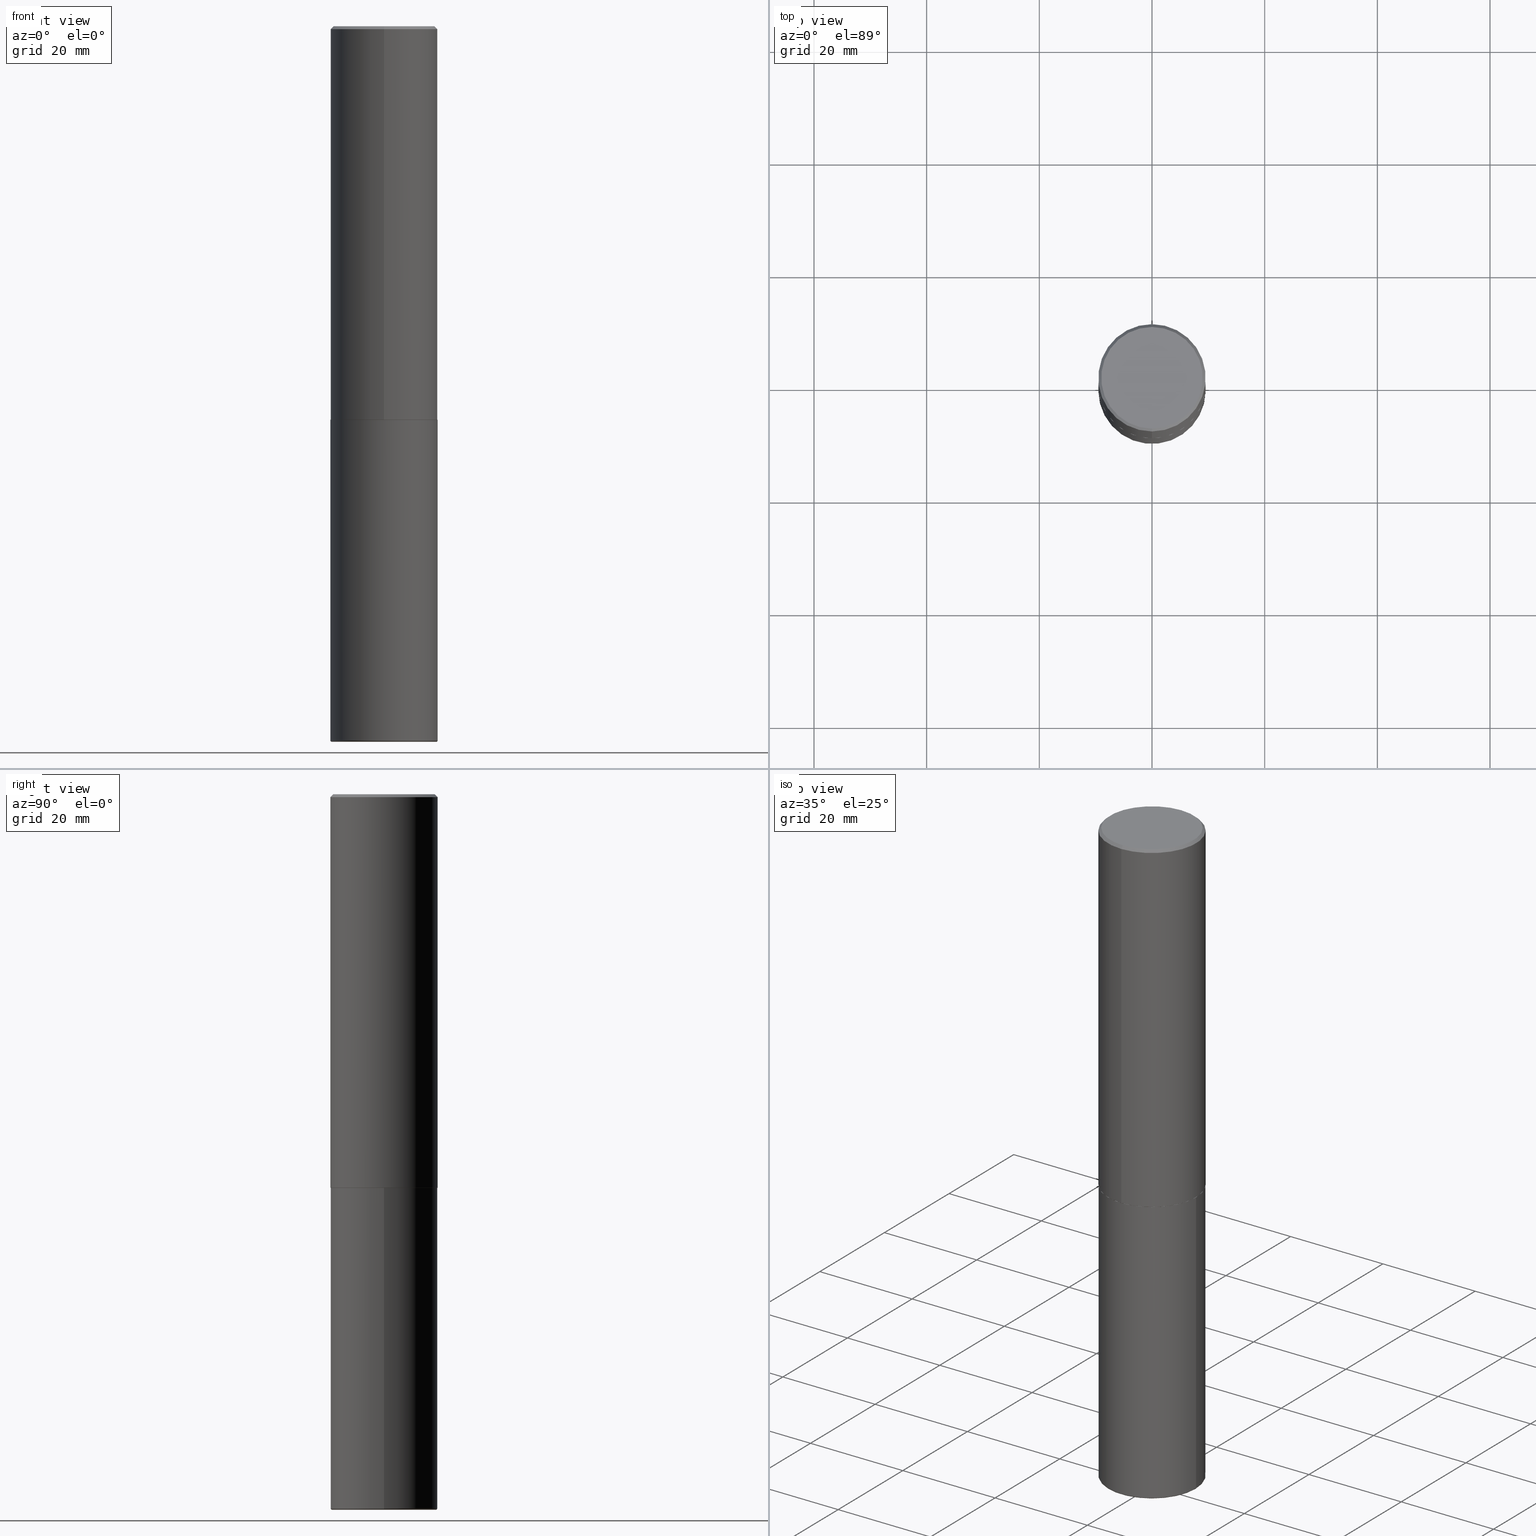
[diagram: canonical four-view strip — front | top / right | iso, engineering-drawing reading convention]
A machine part, canonical four-view strip (front | top / right | iso — engineering-drawing reading convention). The complete STEP part file that produces these views, byte-faithful:
ISO-10303-21;
HEADER;
FILE_DESCRIPTION (( 'STEP AP203' ),
    '1' );
FILE_NAME ('37636.STEP',
    '2024-03-02T06:28:12',
    ( '' ),
    ( '' ),
    'SwSTEP 2.0',
    'SolidWorks 2023',
    '' );
FILE_SCHEMA (( 'CONFIG_CONTROL_DESIGN' ));
ENDSEC;

DATA;
#1 = AXIS2_PLACEMENT_3D ( 'NONE', #70, #113, #350 ) ;
#2 = EDGE_LOOP ( 'NONE', ( #325, #19 ) ) ;
#3 = DIRECTION ( 'NONE',  ( -2.445468806185136597E-29, 3.491481338843145583E-15, 1.000000000000000000 ) ) ;
#4 = DIRECTION ( 'NONE',  ( 1.000000000000000000, -6.982962677686261189E-15, 0.000000000000000000 ) ) ;
#5 = CONICAL_SURFACE ( 'NONE', #381, 0.3739999999999999991, 0.7853981633977213939 ) ;
#6 = CARTESIAN_POINT ( 'NONE',  ( 2.618611004132350411E-15, 0.3749999999999999445, -0.02000000000000139513 ) ) ;
#7 = DIRECTION ( 'NONE',  ( -6.982962677686266711E-15, -1.000000000000000000, 2.921762560068730595E-15 ) ) ;
#8 = ORIENTED_EDGE ( 'NONE', *, *, #354, .F. ) ;
#9 = DIRECTION ( 'NONE',  ( -2.445468806185136597E-29, 3.491481338843145583E-15, 1.000000000000000000 ) ) ;
#10 = ADVANCED_FACE ( 'NONE', ( #359 ), #197, .F. ) ;
#11 = DIRECTION ( 'NONE',  ( -6.982962677686265922E-15, -1.000000000000000000, 3.494488891895536035E-15 ) ) ;
#12 = PERSON_AND_ORGANIZATION ( #415, #66 ) ;
#13 = VERTEX_POINT ( 'NONE', #93 ) ;
#14 = DIRECTION ( 'NONE',  ( -6.982962677686266711E-15, -1.000000000000000000, 3.491481338843145583E-15 ) ) ;
#15 = AXIS2_PLACEMENT_3D ( 'NONE', #147, #62, #11 ) ;
#16 = ORIENTED_EDGE ( 'NONE', *, *, #390, .F. ) ;
#17 = CARTESIAN_POINT ( 'NONE',  ( 0.3750000000000000555, -2.618611004132350016E-15, 1.828566290923476203E-29 ) ) ;
#18 = DIRECTION ( 'NONE',  ( -2.445468806185136597E-29, 3.491481338843145583E-15, 1.000000000000000000 ) ) ;
#19 = ORIENTED_EDGE ( 'NONE', *, *, #271, .F. ) ;
#20 = VECTOR ( 'NONE', #232, 39.37007874015748143 ) ;
#21 = CYLINDRICAL_SURFACE ( 'NONE', #369, 0.3750000000000002220 ) ;
#22 = EDGE_LOOP ( 'NONE', ( #413, #221, #68, #112 ) ) ;
#23 = APPLICATION_PROTOCOL_DEFINITION ( 'international standard', 'config_control_design', 1994, #108 ) ;
#24 = CIRCLE ( 'NONE', #114, 0.3750000000000000555 ) ;
#25 = DIRECTION ( 'NONE',  ( 1.000000000000000000, -6.982962677686266711E-15, 0.000000000000000000 ) ) ;
#26 = VERTEX_POINT ( 'NONE', #145 ) ;
#27 = DIRECTION ( 'NONE',  ( -4.851104656540954809E-15, -0.7071067811865486830, -0.7071067811865463515 ) ) ;
#28 = EDGE_LOOP ( 'NONE', ( #16, #118, #372, #236 ) ) ;
#29 = CARTESIAN_POINT ( 'NONE',  ( 0.3750000000000003886, -2.004110288495964667E-14, -4.990000000000000213 ) ) ;
#30 = ADVANCED_FACE ( 'NONE', ( #207 ), #343, .T. ) ;
#31 = AXIS2_PLACEMENT_3D ( 'NONE', #162, #41, #320 ) ;
#32 = SECURITY_CLASSIFICATION ( '', '', #110 ) ;
#33 = CARTESIAN_POINT ( 'NONE',  ( 6.726611077289389265E-29, -9.599322688432580971E-15, -2.750000000000000000 ) ) ;
#34 = FACE_OUTER_BOUND ( 'NONE', #28, .T. ) ;
#35 = CALENDAR_DATE ( 2024, 2, 3 ) ;
#36 = EDGE_CURVE ( 'NONE', #26, #192, #95, .T. ) ;
#37 = CLOSED_SHELL ( 'NONE', ( #409, #30, #276, #198, #83, #178, #55, #10 ) ) ;
#38 = AXIS2_PLACEMENT_3D ( 'NONE', #205, #177, #175 ) ;
#39 = FACE_OUTER_BOUND ( 'NONE', #306, .T. ) ;
#40 =( LENGTH_UNIT ( ) NAMED_UNIT ( * ) SI_UNIT ( $, .METRE. ) );
#41 = DIRECTION ( 'NONE',  ( 7.105427357601001859E-15, 1.000000000000000000, -3.491481338843145583E-15 ) ) ;
#42 = FACE_OUTER_BOUND ( 'NONE', #203, .T. ) ;
#43 = ORIENTED_EDGE ( 'NONE', *, *, #354, .T. ) ;
#44 = AXIS2_PLACEMENT_3D ( 'NONE', #373, #317, #402 ) ;
#45 = EDGE_CURVE ( 'NONE', #201, #364, #286, .T. ) ;
#46 = DIRECTION ( 'NONE',  ( 1.000000000000000000, -6.982962677686266711E-15, 0.000000000000000000 ) ) ;
#47 = UNCERTAINTY_MEASURE_WITH_UNIT (LENGTH_MEASURE( 1.000000000000000082E-05 ), #379, 'distance_accuracy_value', 'NONE');
#48 = APPROVAL_STATUS ( 'not_yet_approved' ) ;
#49 = DIRECTION ( 'NONE',  ( -2.445468806185136597E-29, 3.491481338843145583E-15, 1.000000000000000000 ) ) ;
#50 = ORIENTED_EDGE ( 'NONE', *, *, #390, .T. ) ;
#51 = APPROVAL_ROLE ( '' ) ;
#52 = AXIS2_PLACEMENT_3D ( 'NONE', #59, #311, #139 ) ;
#53 = VERTEX_POINT ( 'NONE', #214 ) ;
#54 = MANIFOLD_SOLID_BREP ( 'Body-Move/Copy2[1]', #211 ) ;
#55 = ADVANCED_FACE ( 'NONE', ( #42 ), #331, .F. ) ;
#56 = LINE ( 'NONE', #181, #58 ) ;
#57 = AXIS2_PLACEMENT_3D ( 'NONE', #85, #289, #158 ) ;
#58 = VECTOR ( 'NONE', #396, 39.37007874015748143 ) ;
#59 = CARTESIAN_POINT ( 'NONE',  ( 4.892080783483214581E-31, -6.981325591587361238E-17, -0.02000000000000008715 ) ) ;
#60 = ORIENTED_EDGE ( 'NONE', *, *, #351, .F. ) ;
#61 = DIRECTION ( 'NONE',  ( 5.024295867789434219E-15, 0.7071067811867430830, 0.7071067811863519514 ) ) ;
#62 = DIRECTION ( 'NONE',  ( -2.446040391741596606E-29, 3.490662795793665557E-15, 1.000000000000000000 ) ) ;
#63 = EDGE_CURVE ( 'NONE', #279, #356, #160, .T. ) ;
#64 = DIRECTION ( 'NONE',  ( 2.438088387897960049E-29, -3.491481338843145188E-15, -1.000000000000000000 ) ) ;
#65 = AXIS2_PLACEMENT_3D ( 'NONE', #265, #368, #67 ) ;
#66 = ORGANIZATION ( 'UNSPECIFIED', 'UNSPECIFIED', '' ) ;
#67 = DIRECTION ( 'NONE',  ( 1.000000000000000000, -6.982962677686265922E-15, 4.876176775795935793E-29 ) ) ;
#68 = ORIENTED_EDGE ( 'NONE', *, *, #89, .T. ) ;
#69 = PERSON_AND_ORGANIZATION_ROLE ( 'creator' ) ;
#70 = CARTESIAN_POINT ( 'NONE',  ( -1.141397163745304909E-45, 1.628849886601155835E-31, 4.666305460853910467E-17 ) ) ;
#71 = ORIENTED_EDGE ( 'NONE', *, *, #99, .F. ) ;
#72 = CIRCLE ( 'NONE', #15, 0.3750000000000000555 ) ;
#73 = CC_DESIGN_SECURITY_CLASSIFICATION ( #32, ( #157 ) ) ;
#74 = PLANE ( 'NONE',  #212 ) ;
#75 = ORIENTED_EDGE ( 'NONE', *, *, #244, .F. ) ;
#76 = CARTESIAN_POINT ( 'NONE',  ( -2.504081769186608216E-15, -0.3549999999999999822, 1.285848347115290366E-15 ) ) ;
#77 = PERSON_AND_ORGANIZATION_ROLE ( 'classification_officer' ) ;
#78 = APPROVAL_DATE_TIME ( #250, #130 ) ;
#79 = DIRECTION ( 'NONE',  ( -6.982962677686266711E-15, -1.000000000000000000, 3.490662795793665951E-15 ) ) ;
#80 = PRODUCT_DEFINITION_SHAPE ( 'NONE', 'NONE',  #173 ) ;
#81 = VECTOR ( 'NONE', #27, 39.37007874015748143 ) ;
#82 = ORIENTED_EDGE ( 'NONE', *, *, #154, .T. ) ;
#83 = ADVANCED_FACE ( 'NONE', ( #291 ), #21, .T. ) ;
#84 = MECHANICAL_CONTEXT ( 'NONE', #108, 'mechanical' ) ;
#85 = CARTESIAN_POINT ( 'NONE',  ( 6.726611077289389265E-29, -9.599322688432580971E-15, -2.750000000000000000 ) ) ;
#86 = ORIENTED_EDGE ( 'NONE', *, *, #319, .F. ) ;
#87 = CARTESIAN_POINT ( 'NONE',  ( 0.000000000000000000, 0.000000000000000000, 0.000000000000000000 ) ) ;
#88 = ORIENTED_EDGE ( 'NONE', *, *, #292, .T. ) ;
#89 = EDGE_CURVE ( 'NONE', #26, #279, #348, .T. ) ;
#90 = CIRCLE ( 'NONE', #156, 0.3739999999999999991 ) ;
#91 = PERSON_AND_ORGANIZATION ( #415, #66 ) ;
#92 =( NAMED_UNIT ( * ) PLANE_ANGLE_UNIT ( ) SI_UNIT ( $, .RADIAN. ) );
#93 = CARTESIAN_POINT ( 'NONE',  ( -2.611628041454596160E-15, -0.3740000000000096581, -2.749999999999998668 ) ) ;
#94 = DIRECTION ( 'NONE',  ( -6.982962677686265922E-15, -1.000000000000000000, 3.494488891895536035E-15 ) ) ;
#95 = CIRCLE ( 'NONE', #391, 0.3650000000000000466 ) ;
#96 = DIRECTION ( 'NONE',  ( -6.982962677686266711E-15, -1.000000000000000000, 2.921762560068730595E-15 ) ) ;
#97 = CARTESIAN_POINT ( 'NONE',  ( 1.222734403092568523E-28, -1.745740669421573304E-14, -5.000000000000000888 ) ) ;
#98 = FACE_OUTER_BOUND ( 'NONE', #215, .T. ) ;
#99 = EDGE_CURVE ( 'NONE', #364, #356, #358, .T. ) ;
#100 = CIRCLE ( 'NONE', #1, 0.3549999999999999822 ) ;
#101 = ORIENTED_EDGE ( 'NONE', *, *, #387, .T. ) ;
#102 = DIRECTION ( 'NONE',  ( 4.937700262164538576E-15, 0.7071067811865437980, -0.7071067811865512365 ) ) ;
#103 = COORDINATED_UNIVERSAL_TIME_OFFSET ( 5, 0, .BEHIND. ) ;
#104 = CARTESIAN_POINT ( 'NONE',  ( 0.000000000000000000, 0.000000000000000000, 0.000000000000000000 ) ) ;
#105 = EDGE_LOOP ( 'NONE', ( #316, #332, #60, #302 ) ) ;
#106 = DIRECTION ( 'NONE',  ( -1.000000000000000000, 6.982962677686265922E-15, -4.876176775795935793E-29 ) ) ;
#107 = DIRECTION ( 'NONE',  ( -2.446040391741596606E-29, 3.490662795793665557E-15, 1.000000000000000000 ) ) ;
#108 = APPLICATION_CONTEXT ( 'configuration controlled 3d designs of mechanical parts and assemblies' ) ;
#109 = ORIENTED_EDGE ( 'NONE', *, *, #319, .T. ) ;
#110 = SECURITY_CLASSIFICATION_LEVEL ( 'unclassified' ) ;
#111 = CARTESIAN_POINT ( 'NONE',  ( -0.3750000000000000555, 2.664535259100376091E-15, -1.844600658845589598E-29 ) ) ;
#112 = ORIENTED_EDGE ( 'NONE', *, *, #357, .F. ) ;
#113 = DIRECTION ( 'NONE',  ( -2.446040391741596606E-29, 3.490662795793665557E-15, 1.000000000000000000 ) ) ;
#114 = AXIS2_PLACEMENT_3D ( 'NONE', #341, #303, #94 ) ;
#115 = APPROVAL_ROLE ( '' ) ;
#116 = DIRECTION ( 'NONE',  ( 1.000000000000000000, -6.982962677686265922E-15, 4.876176775795935793E-29 ) ) ;
#117 = ADVANCED_FACE ( 'NONE', ( #190 ), #195, .T. ) ;
#118 = ORIENTED_EDGE ( 'NONE', *, *, #321, .T. ) ;
#119 = SHAPE_DEFINITION_REPRESENTATION ( #80, #127 ) ;
#120 = CARTESIAN_POINT ( 'NONE',  ( 0.3650000000000000466, -1.997127325818278338E-14, -4.990000000000000213 ) ) ;
#121 = EDGE_LOOP ( 'NONE', ( #401, #377 ) ) ;
#122 = DIRECTION ( 'NONE',  ( -6.982962677686266711E-15, -1.000000000000000000, 2.921762560068730595E-15 ) ) ;
#123 = VERTEX_POINT ( 'NONE', #414 ) ;
#124 = CONICAL_SURFACE ( 'NONE', #362, 0.3750000000000000555, 0.7853981633974465026 ) ;
#125 = ADVANCED_FACE ( 'NONE', ( #383 ), #258, .T. ) ;
#126 = COORDINATED_UNIVERSAL_TIME_OFFSET ( 5, 0, .BEHIND. ) ;
#127 = ADVANCED_BREP_SHAPE_REPRESENTATION ( '37636', ( #54, #352, #323 ), #315 ) ;
#128 = CARTESIAN_POINT ( 'NONE',  ( 6.725039217009124520E-29, -9.601573681818649859E-15, -2.750000000000000000 ) ) ;
#129 = PERSON_AND_ORGANIZATION ( #415, #66 ) ;
#130 = APPROVAL ( #385, 'UNSPECIFIED' ) ;
#131 = DIRECTION ( 'NONE',  ( -2.446040391741596606E-29, 3.490662795793665557E-15, 1.000000000000000000 ) ) ;
#132 = CIRCLE ( 'NONE', #31, 0.01000000000000057614 ) ;
#133 = APPLICATION_PROTOCOL_DEFINITION ( 'international standard', 'config_control_design', 1994, #210 ) ;
#134 = DIRECTION ( 'NONE',  ( 1.000000000000000000, 0.000000000000000000, 0.000000000000000000 ) ) ;
#135 = FACE_OUTER_BOUND ( 'NONE', #226, .T. ) ;
#136 = CC_DESIGN_DATE_AND_TIME_ASSIGNMENT ( #382, #416, ( #173 ) ) ;
#137 = CARTESIAN_POINT ( 'NONE',  ( -2.572686749164323547E-15, -0.3750000000000001110, -0.01999999999999877570 ) ) ;
#138 = CARTESIAN_POINT ( 'NONE',  ( -2.618611004132351594E-15, -0.3750000000000002220, 1.308998548422625521E-15 ) ) ;
#139 = DIRECTION ( 'NONE',  ( 6.982962677686265922E-15, 1.000000000000000000, -3.494488891895536035E-15 ) ) ;
#140 = EDGE_CURVE ( 'NONE', #192, #201, #132, .T. ) ;
#141 = VECTOR ( 'NONE', #380, 39.37007874015748143 ) ;
#142 = CARTESIAN_POINT ( 'NONE',  ( -2.572686749164323547E-15, -0.3750000000000001110, -0.01999999999999877570 ) ) ;
#143 = VERTEX_POINT ( 'NONE', #155 ) ;
#144 = LINE ( 'NONE', #137, #81 ) ;
#145 = CARTESIAN_POINT ( 'NONE',  ( 0.3650000000000000466, -2.000618807157122291E-14, -5.000000000000000888 ) ) ;
#146 = ORIENTED_EDGE ( 'NONE', *, *, #417, .T. ) ;
#147 = CARTESIAN_POINT ( 'NONE',  ( 4.892080783483214581E-31, -6.981325591587361238E-17, -0.02000000000000008715 ) ) ;
#148 = APPROVAL_STATUS ( 'not_yet_approved' ) ;
#149 = AXIS2_PLACEMENT_3D ( 'NONE', #275, #305, #4 ) ;
#150 = APPROVAL_PERSON_ORGANIZATION ( #355, #151, #51 ) ;
#151 = APPROVAL ( #48, 'UNSPECIFIED' ) ;
#152 = ORIENTED_EDGE ( 'NONE', *, *, #344, .T. ) ;
#153 = DIRECTION ( 'NONE',  ( -6.982962677686265922E-15, -1.000000000000000000, 2.913971193241877611E-15 ) ) ;
#154 = EDGE_CURVE ( 'NONE', #143, #294, #405, .T. ) ;
#155 = CARTESIAN_POINT ( 'NONE',  ( -2.618611004132284935E-15, -0.3750000000000099920, -2.748999999999999222 ) ) ;
#156 = AXIS2_PLACEMENT_3D ( 'NONE', #33, #339, #96 ) ;
#157 = PRODUCT_DEFINITION_FORMATION_WITH_SPECIFIED_SOURCE ( 'ANY', '', #168, .NOT_KNOWN. ) ;
#158 = DIRECTION ( 'NONE',  ( -6.982962677686265922E-15, -1.000000000000000000, 3.490662795793665557E-15 ) ) ;
#159 = EDGE_LOOP ( 'NONE', ( #297, #43, #328, #395 ) ) ;
#160 = LINE ( 'NONE', #17, #141 ) ;
#161 = COORDINATED_UNIVERSAL_TIME_OFFSET ( 5, 0, .BEHIND. ) ;
#162 = CARTESIAN_POINT ( 'NONE',  ( -0.3650000000000000466, -1.482901089530292947E-14, -4.990000000000000213 ) ) ;
#163 = AXIS2_PLACEMENT_3D ( 'NONE', #219, #49, #191 ) ;
#164 = PERSON_AND_ORGANIZATION ( #415, #66 ) ;
#165 = CARTESIAN_POINT ( 'NONE',  ( 0.000000000000000000, 0.000000000000000000, 0.000000000000000000 ) ) ;
#166 = ORIENTED_EDGE ( 'NONE', *, *, #263, .F. ) ;
#167 = DIMENSIONAL_EXPONENTS ( 1.000000000000000000, 0.000000000000000000, 0.000000000000000000, 0.000000000000000000, 0.000000000000000000, 0.000000000000000000, 0.000000000000000000 ) ;
#168 = PRODUCT ( '37636', '37636', '', ( #84 ) ) ;
#169 =( NAMED_UNIT ( * ) SI_UNIT ( $, .STERADIAN. ) SOLID_ANGLE_UNIT ( ) );
#170 = EDGE_LOOP ( 'NONE', ( #8, #101, #82, #86 ) ) ;
#171 = EDGE_CURVE ( 'NONE', #53, #13, #223, .T. ) ;
#172 = VECTOR ( 'NONE', #102, 39.37007874015748143 ) ;
#173 = PRODUCT_DEFINITION ( 'UNKNOWN', '', #157, #193 ) ;
#174 = ORIENTED_EDGE ( 'NONE', *, *, #171, .T. ) ;
#175 = DIRECTION ( 'NONE',  ( -6.982962677686265922E-15, -1.000000000000000000, 2.913971193241877611E-15 ) ) ;
#176 = CC_DESIGN_PERSON_AND_ORGANIZATION_ASSIGNMENT ( #314, #335, ( #157 ) ) ;
#177 = DIRECTION ( 'NONE',  ( -2.446040391741596606E-29, 3.490662795793665557E-15, 1.000000000000000000 ) ) ;
#178 = ADVANCED_FACE ( 'NONE', ( #135 ), #5, .T. ) ;
#179 = AXIS2_PLACEMENT_3D ( 'NONE', #345, #324, #7 ) ;
#180 = ADVANCED_FACE ( 'NONE', ( #224 ), #74, .T. ) ;
#181 = CARTESIAN_POINT ( 'NONE',  ( 2.664535259100376880E-15, 0.3750000000000002220, -1.308998548422625521E-15 ) ) ;
#182 = CC_DESIGN_PERSON_AND_ORGANIZATION_ASSIGNMENT ( #185, #77, ( #32 ) ) ;
#183 = DIRECTION ( 'NONE',  ( -6.982962677686266711E-15, -1.000000000000000000, 3.490662795793665951E-15 ) ) ;
#184 = LINE ( 'NONE', #209, #20 ) ;
#185 = PERSON_AND_ORGANIZATION ( #415, #66 ) ;
#186 = DIRECTION ( 'NONE',  ( 2.438088387897960049E-29, -3.491481338843145188E-15, -1.000000000000000000 ) ) ;
#187 = CIRCLE ( 'NONE', #410, 0.3750000000000000555 ) ;
#188 = ORIENTED_EDGE ( 'NONE', *, *, #321, .F. ) ;
#189 = AXIS2_PLACEMENT_3D ( 'NONE', #283, #400, #213 ) ;
#190 = FACE_OUTER_BOUND ( 'NONE', #105, .T. ) ;
#191 = DIRECTION ( 'NONE',  ( 1.000000000000000000, -6.982962677686271444E-15, 4.883557194083115143E-29 ) ) ;
#192 = VERTEX_POINT ( 'NONE', #262 ) ;
#193 = DESIGN_CONTEXT ( 'detailed design', #210, 'design' ) ;
#194 = ORIENTED_EDGE ( 'NONE', *, *, #63, .F. ) ;
#195 = TOROIDAL_SURFACE ( 'NONE', #163, 0.3650000000000000466, 0.01000000000000061083 ) ;
#196 = APPROVAL_DATE_TIME ( #260, #151 ) ;
#197 = PLANE ( 'NONE',  #295 ) ;
#198 = ADVANCED_FACE ( 'NONE', ( #340 ), #124, .T. ) ;
#199 = CARTESIAN_POINT ( 'NONE',  ( -0.3750000000000000555, -1.084749752222259835E-14, -2.750000000000000000 ) ) ;
#200 = CIRCLE ( 'NONE', #277, 0.3750000000000003886 ) ;
#201 = VERTEX_POINT ( 'NONE', #394 ) ;
#202 = DIRECTION ( 'NONE',  ( -2.445468806185136597E-29, 3.491481338843145583E-15, 1.000000000000000000 ) ) ;
#203 = EDGE_LOOP ( 'NONE', ( #253, #407 ) ) ;
#204 = CARTESIAN_POINT ( 'NONE',  ( 2.657429831742841742E-15, 0.3739999999999903957, -2.750000000000000888 ) ) ;
#205 = CARTESIAN_POINT ( 'NONE',  ( 6.724165036897648492E-29, -9.595832025636787455E-15, -2.749000000000000110 ) ) ;
#206 = TOROIDAL_SURFACE ( 'NONE', #254, 0.3650000000000000466, 0.01000000000000061083 ) ;
#207 = FACE_OUTER_BOUND ( 'NONE', #159, .T. ) ;
#208 = EDGE_LOOP ( 'NONE', ( #188, #222, #88, #109 ) ) ;
#209 = CARTESIAN_POINT ( 'NONE',  ( -2.611628041454596160E-15, -0.3740000000000096581, -2.749999999999998668 ) ) ;
#210 = APPLICATION_CONTEXT ( 'configuration controlled 3d designs of mechanical parts and assemblies' ) ;
#211 = CLOSED_SHELL ( 'NONE', ( #125, #117, #388, #361, #257, #180 ) ) ;
#212 = AXIS2_PLACEMENT_3D ( 'NONE', #225, #64, #106 ) ;
#213 = DIRECTION ( 'NONE',  ( -6.982962677686265922E-15, -1.000000000000000000, 3.490662795793665557E-15 ) ) ;
#214 = CARTESIAN_POINT ( 'NONE',  ( 2.660982545421643429E-15, 0.3739999999999903957, -2.750000000000000888 ) ) ;
#215 = EDGE_LOOP ( 'NONE', ( #241, #299, #274, #71 ) ) ;
#216 = CARTESIAN_POINT ( 'NONE',  ( 6.725039217009124520E-29, -9.601573681818649859E-15, -2.750000000000000000 ) ) ;
#217 = DIRECTION ( 'NONE',  ( 1.000000000000000000, -6.982962677686124716E-15, 0.000000000000000000 ) ) ;
#218 = APPROVAL_PERSON_ORGANIZATION ( #129, #130, #336 ) ;
#219 = CARTESIAN_POINT ( 'NONE',  ( 1.220288934286383144E-28, -1.742249188082729666E-14, -4.990000000000000213 ) ) ;
#220 = PERSON_AND_ORGANIZATION_ROLE ( 'design_owner' ) ;
#221 = ORIENTED_EDGE ( 'NONE', *, *, #271, .T. ) ;
#222 = ORIENTED_EDGE ( 'NONE', *, *, #417, .F. ) ;
#223 = CIRCLE ( 'NONE', #179, 0.3739999999999999991 ) ;
#224 = FACE_OUTER_BOUND ( 'NONE', #2, .T. ) ;
#225 = CARTESIAN_POINT ( 'NONE',  ( 1.774526178394363037E-29, -3.242643679648566706E-14, -5.000000000000000000 ) ) ;
#226 = EDGE_LOOP ( 'NONE', ( #166, #174, #264, #367 ) ) ;
#227 = CARTESIAN_POINT ( 'NONE',  ( 6.725039217009124520E-29, -9.601573681818649859E-15, -2.750000000000000000 ) ) ;
#228 = AXIS2_PLACEMENT_3D ( 'NONE', #87, #18, #116 ) ;
#229 = CC_DESIGN_APPROVAL ( #287, ( #32 ) ) ;
#230 = ORIENTED_EDGE ( 'NONE', *, *, #263, .T. ) ;
#231 = DIRECTION ( 'NONE',  ( 2.446040391741596606E-29, -3.490662795793665557E-15, -1.000000000000000000 ) ) ;
#232 = DIRECTION ( 'NONE',  ( -4.937700262165896205E-15, -0.7071067811867381980, 0.7071067811863568364 ) ) ;
#233 = CYLINDRICAL_SURFACE ( 'NONE', #65, 0.3750000000000000555 ) ;
#234 = EDGE_CURVE ( 'NONE', #356, #364, #187, .T. ) ;
#235 = CONICAL_SURFACE ( 'NONE', #44, 0.3739999999999999991, 0.7853981633977213939 ) ;
#236 = ORIENTED_EDGE ( 'NONE', *, *, #292, .F. ) ;
#237 = CARTESIAN_POINT ( 'NONE',  ( 0.3750000000000000555, -1.222018468595100145E-14, -2.750000000000000000 ) ) ;
#238 = DATE_AND_TIME ( #318, #269 ) ;
#239 = CC_DESIGN_PERSON_AND_ORGANIZATION_ASSIGNMENT ( #91, #220, ( #168 ) ) ;
#240 = COORDINATED_UNIVERSAL_TIME_OFFSET ( 5, 0, .BEHIND. ) ;
#241 = ORIENTED_EDGE ( 'NONE', *, *, #45, .F. ) ;
#242 = CARTESIAN_POINT ( 'NONE',  ( 2.618611004132350411E-15, 0.3749999999999999445, -0.02000000000000139513 ) ) ;
#243 = CC_DESIGN_PERSON_AND_ORGANIZATION_ASSIGNMENT ( #371, #69, ( #157 ) ) ;
#244 = EDGE_CURVE ( 'NONE', #13, #143, #184, .T. ) ;
#245 = DIRECTION ( 'NONE',  ( 1.000000000000000000, -6.982962677686270655E-15, 0.000000000000000000 ) ) ;
#246 = EDGE_LOOP ( 'NONE', ( #259, #272, #249, #194 ) ) ;
#247 = DATE_AND_TIME ( #35, #278 ) ;
#248 = CALENDAR_DATE ( 2024, 2, 3 ) ;
#249 = ORIENTED_EDGE ( 'NONE', *, *, #234, .F. ) ;
#250 = DATE_AND_TIME ( #248, #360 ) ;
#251 = DIRECTION ( 'NONE',  ( 6.982962677686265922E-15, 1.000000000000000000, -3.490662795793665557E-15 ) ) ;
#252 = AXIS2_PLACEMENT_3D ( 'NONE', #128, #353, #46 ) ;
#253 = ORIENTED_EDGE ( 'NONE', *, *, #344, .F. ) ;
#254 = AXIS2_PLACEMENT_3D ( 'NONE', #393, #270, #365 ) ;
#255 = CC_DESIGN_DATE_AND_TIME_ASSIGNMENT ( #247, #284, ( #32 ) ) ;
#256 = VERTEX_POINT ( 'NONE', #310 ) ;
#257 = ADVANCED_FACE ( 'NONE', ( #363 ), #206, .T. ) ;
#258 = CYLINDRICAL_SURFACE ( 'NONE', #228, 0.3750000000000000555 ) ;
#259 = ORIENTED_EDGE ( 'NONE', *, *, #351, .T. ) ;
#260 = DATE_AND_TIME ( #330, #412 ) ;
#261 = CIRCLE ( 'NONE', #189, 0.3549999999999999822 ) ;
#262 = CARTESIAN_POINT ( 'NONE',  ( -0.3650000000000000466, -1.481094116520914498E-14, -5.000000000000000888 ) ) ;
#263 = EDGE_CURVE ( 'NONE', #53, #256, #307, .T. ) ;
#264 = ORIENTED_EDGE ( 'NONE', *, *, #244, .T. ) ;
#265 = CARTESIAN_POINT ( 'NONE',  ( 0.000000000000000000, 0.000000000000000000, 0.000000000000000000 ) ) ;
#266 = CARTESIAN_POINT ( 'NONE',  ( 6.726611077289389265E-29, -9.599322688432580971E-15, -2.750000000000000000 ) ) ;
#267 = CARTESIAN_POINT ( 'NONE',  ( 1.220288934286383144E-28, -1.742249188082729666E-14, -4.990000000000000213 ) ) ;
#268 = AXIS2_PLACEMENT_3D ( 'NONE', #97, #9, #338 ) ;
#269 = LOCAL_TIME ( 1, 28, 12.00000000000000000, #103 ) ;
#270 = DIRECTION ( 'NONE',  ( -2.445468806185136597E-29, 3.491481338843145583E-15, 1.000000000000000000 ) ) ;
#271 = EDGE_CURVE ( 'NONE', #192, #26, #342, .T. ) ;
#272 = ORIENTED_EDGE ( 'NONE', *, *, #45, .T. ) ;
#273 = DIRECTION ( 'NONE',  ( 1.000000000000000000, -6.982962677686261189E-15, 0.000000000000000000 ) ) ;
#274 = ORIENTED_EDGE ( 'NONE', *, *, #63, .T. ) ;
#275 = CARTESIAN_POINT ( 'NONE',  ( 1.220288934286383144E-28, -1.742249188082729666E-14, -4.990000000000000213 ) ) ;
#276 = ADVANCED_FACE ( 'NONE', ( #34 ), #399, .T. ) ;
#277 = AXIS2_PLACEMENT_3D ( 'NONE', #378, #326, #153 ) ;
#278 = LOCAL_TIME ( 1, 28, 12.00000000000000000, #312 ) ;
#279 = VERTEX_POINT ( 'NONE', #29 ) ;
#280 = PLANE ( 'NONE',  #322 ) ;
#281 = CARTESIAN_POINT ( 'NONE',  ( 1.222734403092568523E-28, -1.745740669421573304E-14, -5.000000000000000888 ) ) ;
#282 = ORIENTED_EDGE ( 'NONE', *, *, #327, .F. ) ;
#283 = CARTESIAN_POINT ( 'NONE',  ( -1.141397163745304909E-45, 1.628849886601155835E-31, 4.666305460853910467E-17 ) ) ;
#284 = DATE_TIME_ROLE ( 'classification_date' ) ;
#285 = LENGTH_MEASURE_WITH_UNIT ( LENGTH_MEASURE( 0.02539999999999999897 ), #40 );
#286 = LINE ( 'NONE', #111, #337 ) ;
#287 = APPROVAL ( #148, 'UNSPECIFIED' ) ;
#288 = VECTOR ( 'NONE', #61, 39.37007874015748143 ) ;
#289 = DIRECTION ( 'NONE',  ( -2.446040391741596045E-29, 3.490662795793665557E-15, 1.000000000000000000 ) ) ;
#290 = APPROVAL_PERSON_ORGANIZATION ( #12, #287, #115 ) ;
#291 = FACE_OUTER_BOUND ( 'NONE', #170, .T. ) ;
#292 = EDGE_CURVE ( 'NONE', #123, #397, #366, .T. ) ;
#293 = EDGE_LOOP ( 'NONE', ( #146, #50 ) ) ;
#294 = VERTEX_POINT ( 'NONE', #142 ) ;
#295 = AXIS2_PLACEMENT_3D ( 'NONE', #406, #334, #251 ) ;
#296 = CIRCLE ( 'NONE', #149, 0.3750000000000000555 ) ;
#297 = ORIENTED_EDGE ( 'NONE', *, *, #327, .T. ) ;
#298 = DIRECTION ( 'NONE',  ( -2.446040391741596606E-29, 3.490662795793665557E-15, 1.000000000000000000 ) ) ;
#299 = ORIENTED_EDGE ( 'NONE', *, *, #357, .T. ) ;
#300 = CALENDAR_DATE ( 2024, 2, 3 ) ;
#301 = DIRECTION ( 'NONE',  ( -2.446040391741596606E-29, 3.490662795793665557E-15, 1.000000000000000000 ) ) ;
#302 = ORIENTED_EDGE ( 'NONE', *, *, #89, .F. ) ;
#303 = DIRECTION ( 'NONE',  ( -2.446040391741596606E-29, 3.490662795793665557E-15, 1.000000000000000000 ) ) ;
#304 = CC_DESIGN_PERSON_AND_ORGANIZATION_ASSIGNMENT ( #164, #333, ( #173 ) ) ;
#305 = DIRECTION ( 'NONE',  ( -2.445468806185136597E-29, 3.491481338843145583E-15, 1.000000000000000000 ) ) ;
#306 = EDGE_LOOP ( 'NONE', ( #152, #230, #282, #75 ) ) ;
#307 = LINE ( 'NONE', #204, #288 ) ;
#308 = CIRCLE ( 'NONE', #38, 0.3750000000000003886 ) ;
#309 = CC_DESIGN_APPROVAL ( #130, ( #157 ) ) ;
#310 = CARTESIAN_POINT ( 'NONE',  ( 2.664535259100411196E-15, 0.3749999999999907296, -2.749000000000000998 ) ) ;
#311 = DIRECTION ( 'NONE',  ( 2.446040391741596606E-29, -3.490662795793665557E-15, -1.000000000000000000 ) ) ;
#312 = COORDINATED_UNIVERSAL_TIME_OFFSET ( 5, 0, .BEHIND. ) ;
#313 = APPROVAL_DATE_TIME ( #238, #287 ) ;
#314 = PERSON_AND_ORGANIZATION ( #415, #66 ) ;
#315 =( GEOMETRIC_REPRESENTATION_CONTEXT ( 3 ) GLOBAL_UNCERTAINTY_ASSIGNED_CONTEXT ( ( #47 ) ) GLOBAL_UNIT_ASSIGNED_CONTEXT ( ( #379, #92, #169 ) ) REPRESENTATION_CONTEXT ( 'NONE', 'WORKASPACE' ) );
#316 = ORIENTED_EDGE ( 'NONE', *, *, #36, .T. ) ;
#317 = DIRECTION ( 'NONE',  ( -2.446040391741596606E-29, 3.490662795793665557E-15, 1.000000000000000000 ) ) ;
#318 = CALENDAR_DATE ( 2024, 2, 3 ) ;
#319 = EDGE_CURVE ( 'NONE', #397, #294, #72, .T. ) ;
#320 = DIRECTION ( 'NONE',  ( -1.000000000000000000, 7.105427357601099677E-15, 0.000000000000000000 ) ) ;
#321 = EDGE_CURVE ( 'NONE', #384, #294, #144, .T. ) ;
#322 = AXIS2_PLACEMENT_3D ( 'NONE', #216, #186, #346 ) ;
#323 = AXIS2_PLACEMENT_3D ( 'NONE', #411, #418, #134 ) ;
#324 = DIRECTION ( 'NONE',  ( -2.446040391741596606E-29, 3.490662795793665557E-15, 1.000000000000000000 ) ) ;
#325 = ORIENTED_EDGE ( 'NONE', *, *, #36, .F. ) ;
#326 = DIRECTION ( 'NONE',  ( -2.446040391741596606E-29, 3.490662795793665557E-15, 1.000000000000000000 ) ) ;
#327 = EDGE_CURVE ( 'NONE', #143, #256, #308, .T. ) ;
#328 = ORIENTED_EDGE ( 'NONE', *, *, #329, .F. ) ;
#329 = EDGE_CURVE ( 'NONE', #294, #397, #24, .T. ) ;
#330 = CALENDAR_DATE ( 2024, 2, 3 ) ;
#331 = PLANE ( 'NONE',  #57 ) ;
#332 = ORIENTED_EDGE ( 'NONE', *, *, #140, .T. ) ;
#333 = PERSON_AND_ORGANIZATION_ROLE ( 'creator' ) ;
#334 = DIRECTION ( 'NONE',  ( 2.446040391741596045E-29, -3.490662795793665557E-15, -1.000000000000000000 ) ) ;
#335 = PERSON_AND_ORGANIZATION_ROLE ( 'design_supplier' ) ;
#336 = APPROVAL_ROLE ( '' ) ;
#337 = VECTOR ( 'NONE', #376, 39.37007874015748143 ) ;
#338 = DIRECTION ( 'NONE',  ( 1.000000000000000000, -6.982962677686270655E-15, 0.000000000000000000 ) ) ;
#339 = DIRECTION ( 'NONE',  ( -2.446040391741596606E-29, 3.490662795793665557E-15, 1.000000000000000000 ) ) ;
#340 = FACE_OUTER_BOUND ( 'NONE', #208, .T. ) ;
#341 = CARTESIAN_POINT ( 'NONE',  ( 4.892080783483214581E-31, -6.981325591587361238E-17, -0.02000000000000008715 ) ) ;
#342 = CIRCLE ( 'NONE', #268, 0.3650000000000000466 ) ;
#343 = CYLINDRICAL_SURFACE ( 'NONE', #347, 0.3750000000000002220 ) ;
#344 = EDGE_CURVE ( 'NONE', #13, #53, #90, .T. ) ;
#345 = CARTESIAN_POINT ( 'NONE',  ( 6.726611077289389265E-29, -9.599322688432580971E-15, -2.750000000000000000 ) ) ;
#346 = DIRECTION ( 'NONE',  ( -1.000000000000000000, 6.982962677686265922E-15, -4.876176775795935793E-29 ) ) ;
#347 = AXIS2_PLACEMENT_3D ( 'NONE', #104, #107, #183 ) ;
#348 = CIRCLE ( 'NONE', #375, 0.01000000000000057614 ) ;
#349 = LOCAL_TIME ( 1, 28, 12.00000000000000000, #126 ) ;
#350 = DIRECTION ( 'NONE',  ( -6.982962677686265922E-15, -1.000000000000000000, 3.490662795793665557E-15 ) ) ;
#351 = EDGE_CURVE ( 'NONE', #279, #201, #296, .T. ) ;
#352 = MANIFOLD_SOLID_BREP ( 'Body-Move/Copy2[2]', #37 ) ;
#353 = DIRECTION ( 'NONE',  ( -2.445468806185136597E-29, 3.491481338843145583E-15, 1.000000000000000000 ) ) ;
#354 = EDGE_CURVE ( 'NONE', #256, #397, #56, .T. ) ;
#355 = PERSON_AND_ORGANIZATION ( #415, #66 ) ;
#356 = VERTEX_POINT ( 'NONE', #237 ) ;
#357 = EDGE_CURVE ( 'NONE', #201, #279, #403, .T. ) ;
#358 = CIRCLE ( 'NONE', #252, 0.3750000000000000555 ) ;
#359 = FACE_OUTER_BOUND ( 'NONE', #293, .T. ) ;
#360 = LOCAL_TIME ( 1, 28, 12.00000000000000000, #240 ) ;
#361 = ADVANCED_FACE ( 'NONE', ( #98 ), #233, .T. ) ;
#362 = AXIS2_PLACEMENT_3D ( 'NONE', #389, #231, #398 ) ;
#363 = FACE_OUTER_BOUND ( 'NONE', #22, .T. ) ;
#364 = VERTEX_POINT ( 'NONE', #199 ) ;
#365 = DIRECTION ( 'NONE',  ( 1.000000000000000000, -6.982962677686271444E-15, 4.883557194083115143E-29 ) ) ;
#366 = LINE ( 'NONE', #6, #172 ) ;
#367 = ORIENTED_EDGE ( 'NONE', *, *, #387, .F. ) ;
#368 = DIRECTION ( 'NONE',  ( -2.445468806185136597E-29, 3.491481338843145583E-15, 1.000000000000000000 ) ) ;
#369 = AXIS2_PLACEMENT_3D ( 'NONE', #165, #298, #79 ) ;
#370 = DIRECTION ( 'NONE',  ( -2.445468806185136597E-29, 3.491481338843145583E-15, 1.000000000000000000 ) ) ;
#371 = PERSON_AND_ORGANIZATION ( #415, #66 ) ;
#372 = ORIENTED_EDGE ( 'NONE', *, *, #329, .T. ) ;
#373 = CARTESIAN_POINT ( 'NONE',  ( 6.726611077289389265E-29, -9.599322688432580971E-15, -2.750000000000000000 ) ) ;
#374 = PRODUCT_RELATED_PRODUCT_CATEGORY ( 'detail', '', ( #168 ) ) ;
#375 = AXIS2_PLACEMENT_3D ( 'NONE', #120, #14, #217 ) ;
#376 = DIRECTION ( 'NONE',  ( -2.445468806185136877E-29, 3.491481338843145188E-15, 1.000000000000000000 ) ) ;
#377 = ORIENTED_EDGE ( 'NONE', *, *, #99, .T. ) ;
#378 = CARTESIAN_POINT ( 'NONE',  ( 6.724165036897648492E-29, -9.595832025636787455E-15, -2.749000000000000110 ) ) ;
#379 =( CONVERSION_BASED_UNIT ( 'INCH', #285 ) LENGTH_UNIT ( ) NAMED_UNIT ( #167 ) );
#380 = DIRECTION ( 'NONE',  ( -2.445468806185136877E-29, 3.491481338843145188E-15, 1.000000000000000000 ) ) ;
#381 = AXIS2_PLACEMENT_3D ( 'NONE', #266, #301, #122 ) ;
#382 = DATE_AND_TIME ( #300, #349 ) ;
#383 = FACE_OUTER_BOUND ( 'NONE', #246, .T. ) ;
#384 = VERTEX_POINT ( 'NONE', #76 ) ;
#385 = APPROVAL_STATUS ( 'not_yet_approved' ) ;
#386 = AXIS2_PLACEMENT_3D ( 'NONE', #267, #3, #273 ) ;
#387 = EDGE_CURVE ( 'NONE', #256, #143, #200, .T. ) ;
#388 = ADVANCED_FACE ( 'NONE', ( #408 ), #280, .F. ) ;
#389 = CARTESIAN_POINT ( 'NONE',  ( 4.892080783483214581E-31, -6.981325591587361238E-17, -0.02000000000000008715 ) ) ;
#390 = EDGE_CURVE ( 'NONE', #384, #123, #261, .T. ) ;
#391 = AXIS2_PLACEMENT_3D ( 'NONE', #281, #370, #245 ) ;
#392 = VECTOR ( 'NONE', #131, 39.37007874015748143 ) ;
#393 = CARTESIAN_POINT ( 'NONE',  ( 1.220288934286383144E-28, -1.742249188082729666E-14, -4.990000000000000213 ) ) ;
#394 = CARTESIAN_POINT ( 'NONE',  ( -0.3750000000000003886, -1.475795662172691781E-14, -4.990000000000000213 ) ) ;
#395 = ORIENTED_EDGE ( 'NONE', *, *, #154, .F. ) ;
#396 = DIRECTION ( 'NONE',  ( -2.446040391741596606E-29, 3.490662795793665557E-15, 1.000000000000000000 ) ) ;
#397 = VERTEX_POINT ( 'NONE', #242 ) ;
#398 = DIRECTION ( 'NONE',  ( 6.982962677686265922E-15, 1.000000000000000000, -3.494488891895536035E-15 ) ) ;
#399 = CONICAL_SURFACE ( 'NONE', #52, 0.3750000000000000555, 0.7853981633974465026 ) ;
#400 = DIRECTION ( 'NONE',  ( -2.446040391741596606E-29, 3.490662795793665557E-15, 1.000000000000000000 ) ) ;
#401 = ORIENTED_EDGE ( 'NONE', *, *, #234, .T. ) ;
#402 = DIRECTION ( 'NONE',  ( -6.982962677686266711E-15, -1.000000000000000000, 2.921762560068730595E-15 ) ) ;
#403 = CIRCLE ( 'NONE', #386, 0.3750000000000000555 ) ;
#404 = CC_DESIGN_APPROVAL ( #151, ( #173 ) ) ;
#405 = LINE ( 'NONE', #138, #392 ) ;
#406 = CARTESIAN_POINT ( 'NONE',  ( 2.478951750578624209E-15, 0.3549999999999999822, -1.215853765202481601E-15 ) ) ;
#407 = ORIENTED_EDGE ( 'NONE', *, *, #171, .F. ) ;
#408 = FACE_OUTER_BOUND ( 'NONE', #121, .T. ) ;
#409 = ADVANCED_FACE ( 'NONE', ( #39 ), #235, .T. ) ;
#410 = AXIS2_PLACEMENT_3D ( 'NONE', #227, #202, #25 ) ;
#411 = CARTESIAN_POINT ( 'NONE',  ( 0.000000000000000000, 0.000000000000000000, 0.000000000000000000 ) ) ;
#412 = LOCAL_TIME ( 1, 28, 12.00000000000000000, #161 ) ;
#413 = ORIENTED_EDGE ( 'NONE', *, *, #140, .F. ) ;
#414 = CARTESIAN_POINT ( 'NONE',  ( 2.548781377355487113E-15, 0.3549999999999999822, -1.192522237898212341E-15 ) ) ;
#415 = PERSON ( 'UNSPECIFIED', 'UNSPECIFIED', 'UNSPECIFIED', ('UNSPECIFIED'), ('UNSPECIFIED'), ('UNSPECIFIED') ) ;
#416 = DATE_TIME_ROLE ( 'creation_date' ) ;
#417 = EDGE_CURVE ( 'NONE', #123, #384, #100, .T. ) ;
#418 = DIRECTION ( 'NONE',  ( 0.000000000000000000, 0.000000000000000000, 1.000000000000000000 ) ) ;
ENDSEC;
END-ISO-10303-21;
